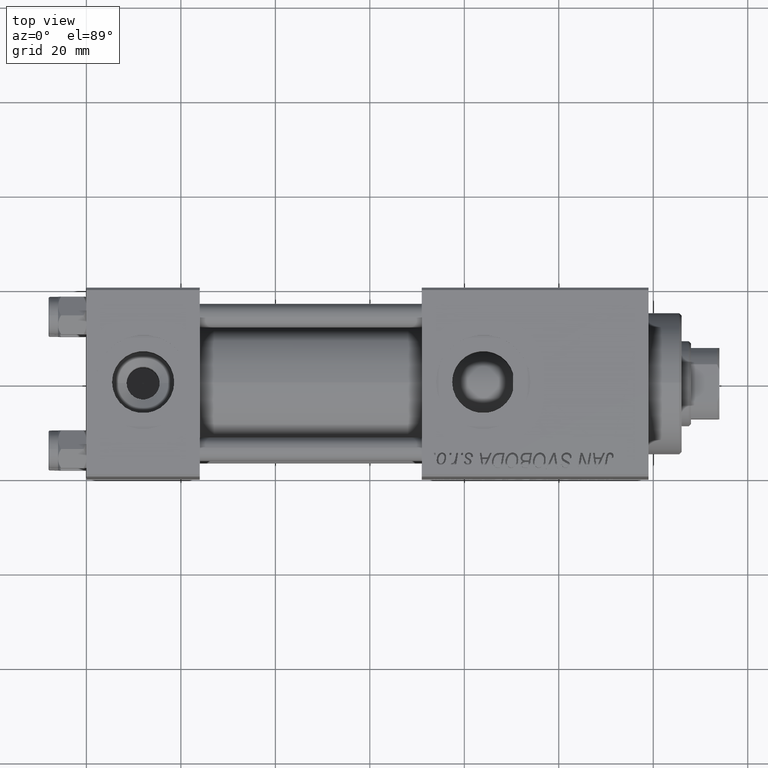
[diagram: clean part render]
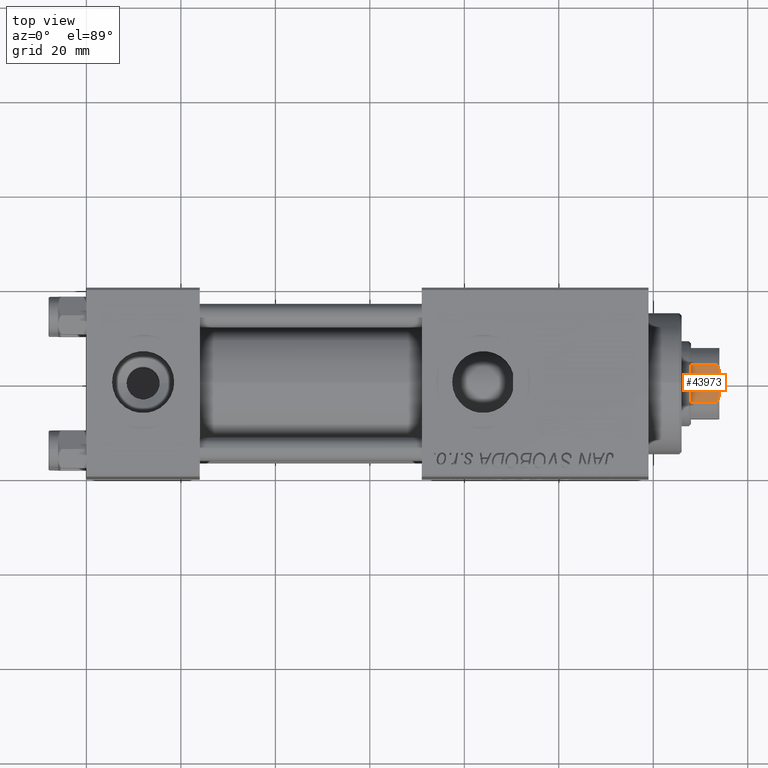
[diagram: same view with one face highlighted and labeled with its STEP entity id]
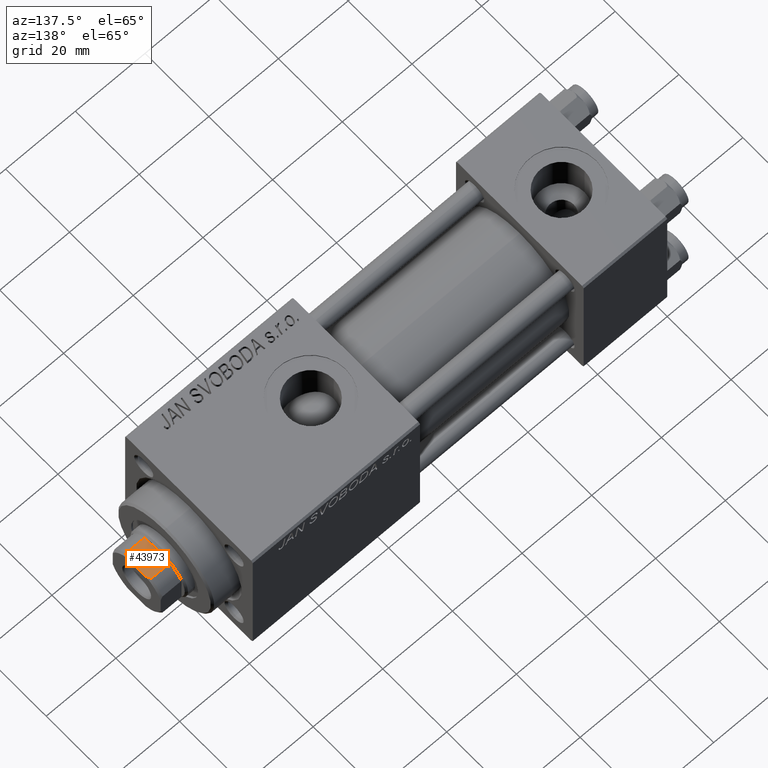
[diagram: same view with one face highlighted and labeled with its STEP entity id]
A machine part, top view. The second image highlights one B-rep face of the part: STEP entity #43973.
A second angle (auxiliary view) of the same face is appended — the face is thin or edge-on in the first view.
In plain terms, the highlighted planar face has unit normal (0, 0, -1).
Its self-contained STEP definition (entity closure, byte-faithful):
#1839 = EDGE_CURVE ( 'NONE', #21193, #40342, #3556, .T. ) ;
#2736 = VECTOR ( 'NONE', #19618, 1000.000000000000000 ) ;
#2807 = CARTESIAN_POINT ( 'NONE',  ( 2.783882181414686574, -7.500000000000000000, 110.0000000000000000 ) ) ;
#3556 = LINE ( 'NONE', #47818, #2736 ) ;
#3726 = EDGE_CURVE ( 'NONE', #15387, #11368, #9556, .T. ) ;
#4786 = CARTESIAN_POINT ( 'NONE',  ( -7.499999999999998224, -7.500000000000000000, 104.0000000000000000 ) ) ;
#7306 = CARTESIAN_POINT ( 'NONE',  ( 3.198463757182489431, -7.500000000000000000, 109.8557317173096379 ) ) ;
#7572 = CARTESIAN_POINT ( 'NONE',  ( -2.783882181414881973, -7.500000000000000000, 110.0000000000000000 ) ) ;
#9180 = ORIENTED_EDGE ( 'NONE', *, *, #39391, .T. ) ;
#9396 = CARTESIAN_POINT ( 'NONE',  ( 4.000000000000001776, -7.500000000000000000, 103.9999999999999716 ) ) ;
#9556 = LINE ( 'NONE', #34063, #29733 ) ;
#10227 = VECTOR ( 'NONE', #32450, 1000.000000000000000 ) ;
#10559 = ORIENTED_EDGE ( 'NONE', *, *, #3726, .T. ) ;
#11162 = VERTEX_POINT ( 'NONE', #33380 ) ;
#11368 = VERTEX_POINT ( 'NONE', #45433 ) ;
#13594 = VECTOR ( 'NONE', #21678, 1000.000000000000000 ) ;
#13824 = FACE_OUTER_BOUND ( 'NONE', #33130, .T. ) ;
#15387 = VERTEX_POINT ( 'NONE', #9396 ) ;
#17733 = CARTESIAN_POINT ( 'NONE',  ( -4.000000000000001776, -7.500000000000000000, -0.001000000000001000089 ) ) ;
#17755 = CARTESIAN_POINT ( 'NONE',  ( -2.783882181414881973, -7.500000000000000000, 110.0000000000000000 ) ) ;
#19618 = DIRECTION ( 'NONE',  ( 1.000000000000000000, 0.000000000000000000, 0.000000000000000000 ) ) ;
#20457 = EDGE_CURVE ( 'NONE', #21193, #32330, #47745, .T. ) ;
#21193 = VERTEX_POINT ( 'NONE', #7572 ) ;
#21678 = DIRECTION ( 'NONE',  ( -0.000000000000000000, -0.000000000000000000, 1.000000000000000000 ) ) ;
#25173 = PLANE ( 'NONE',  #32298 ) ;
#26899 = ORIENTED_EDGE ( 'NONE', *, *, #1839, .F. ) ;
#29567 = B_SPLINE_CURVE_WITH_KNOTS ( 'NONE', 3,
 ( #38903, #31268, #7306, #2807 ),
 .UNSPECIFIED., .F., .F.,
 ( 4, 4 ),
 ( 9.540979117872439019E-18, 0.001314892599675281017 ),
 .UNSPECIFIED. ) ;
#29733 = VECTOR ( 'NONE', #50137, 1000.000000000000000 ) ;
#29901 = DIRECTION ( 'NONE',  ( 0.000000000000000000, 1.000000000000000000, 0.000000000000000000 ) ) ;
#31268 = CARTESIAN_POINT ( 'NONE',  ( 3.602928590769623352, -7.500000000000000000, 109.6868571337553675 ) ) ;
#32298 = AXIS2_PLACEMENT_3D ( 'NONE', #37554, #29901, #49906 ) ;
#32330 = VERTEX_POINT ( 'NONE', #40677 ) ;
#32450 = DIRECTION ( 'NONE',  ( 1.000000000000000000, 0.000000000000000000, 0.000000000000000000 ) ) ;
#33130 = EDGE_LOOP ( 'NONE', ( #10559, #45647, #26899, #36833, #36968, #9180 ) ) ;
#33380 = CARTESIAN_POINT ( 'NONE',  ( -4.000000000000001776, -7.500000000000000000, 103.9999999999999858 ) ) ;
#33814 = CARTESIAN_POINT ( 'NONE',  ( -3.602928590769680639, -7.500000000000000000, 109.6868571337553959 ) ) ;
#34063 = CARTESIAN_POINT ( 'NONE',  ( 4.000000000000001776, -7.500000000000000000, -0.001000000000001000089 ) ) ;
#36833 = ORIENTED_EDGE ( 'NONE', *, *, #20457, .T. ) ;
#36968 = ORIENTED_EDGE ( 'NONE', *, *, #38064, .F. ) ;
#37554 = CARTESIAN_POINT ( 'NONE',  ( -7.499999999999998224, -7.500000000000000000, 110.0000000000000000 ) ) ;
#38064 = EDGE_CURVE ( 'NONE', #11162, #32330, #45397, .T. ) ;
#38903 = CARTESIAN_POINT ( 'NONE',  ( 4.000000000000001776, -7.500000000000000000, 109.4999999999998579 ) ) ;
#39391 = EDGE_CURVE ( 'NONE', #11162, #15387, #49289, .T. ) ;
#40342 = VERTEX_POINT ( 'NONE', #51900 ) ;
#40677 = CARTESIAN_POINT ( 'NONE',  ( -4.000000000000001776, -7.500000000000000000, 109.4999999999999147 ) ) ;
#41736 = CARTESIAN_POINT ( 'NONE',  ( -4.000000000000001776, -7.500000000000000000, 109.4999999999999147 ) ) ;
#41997 = CARTESIAN_POINT ( 'NONE',  ( -3.198463757182627099, -7.500000000000000000, 109.8557317173096521 ) ) ;
#43361 = EDGE_CURVE ( 'NONE', #11368, #40342, #29567, .T. ) ;
#43973 = ADVANCED_FACE ( 'NONE', ( #13824 ), #25173, .F. ) ;
#45397 = LINE ( 'NONE', #17733, #13594 ) ;
#45433 = CARTESIAN_POINT ( 'NONE',  ( 4.000000000000001776, -7.500000000000000000, 109.4999999999998579 ) ) ;
#45647 = ORIENTED_EDGE ( 'NONE', *, *, #43361, .T. ) ;
#47745 = B_SPLINE_CURVE_WITH_KNOTS ( 'NONE', 3,
 ( #17755, #41997, #33814, #41736 ),
 .UNSPECIFIED., .F., .F.,
 ( 4, 4 ),
 ( 0.000000000000000000, 0.001314892599675087379 ),
 .UNSPECIFIED. ) ;
#47818 = CARTESIAN_POINT ( 'NONE',  ( -7.499999999999998224, -7.500000000000000000, 110.0000000000000000 ) ) ;
#49289 = LINE ( 'NONE', #4786, #10227 ) ;
#49906 = DIRECTION ( 'NONE',  ( 0.000000000000000000, -0.000000000000000000, 1.000000000000000000 ) ) ;
#50137 = DIRECTION ( 'NONE',  ( -0.000000000000000000, -0.000000000000000000, 1.000000000000000000 ) ) ;
#51900 = CARTESIAN_POINT ( 'NONE',  ( 2.783882181414686574, -7.500000000000000000, 110.0000000000000000 ) ) ;